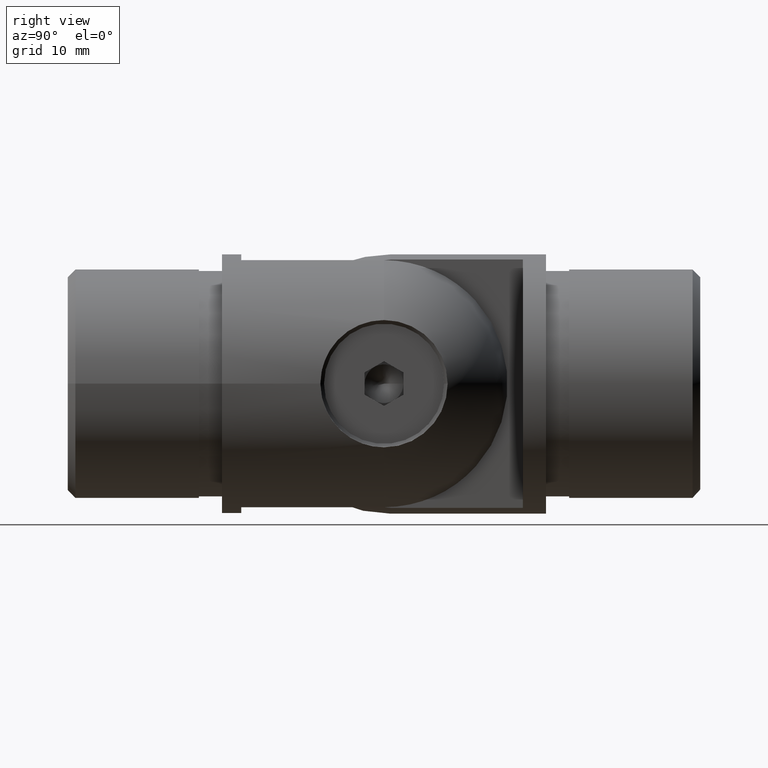
[diagram: clean part render]
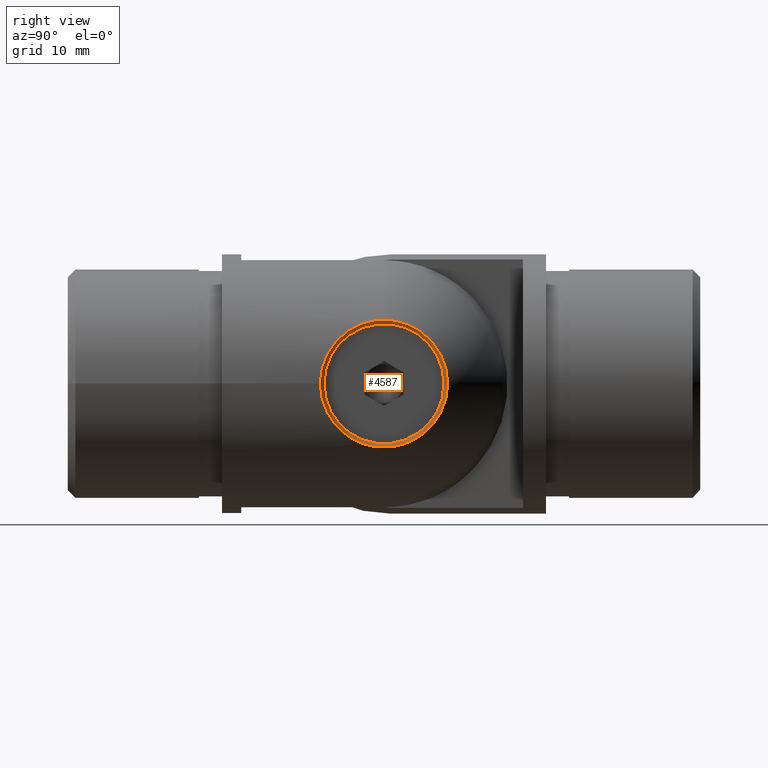
[diagram: same view with one face highlighted and labeled with its STEP entity id]
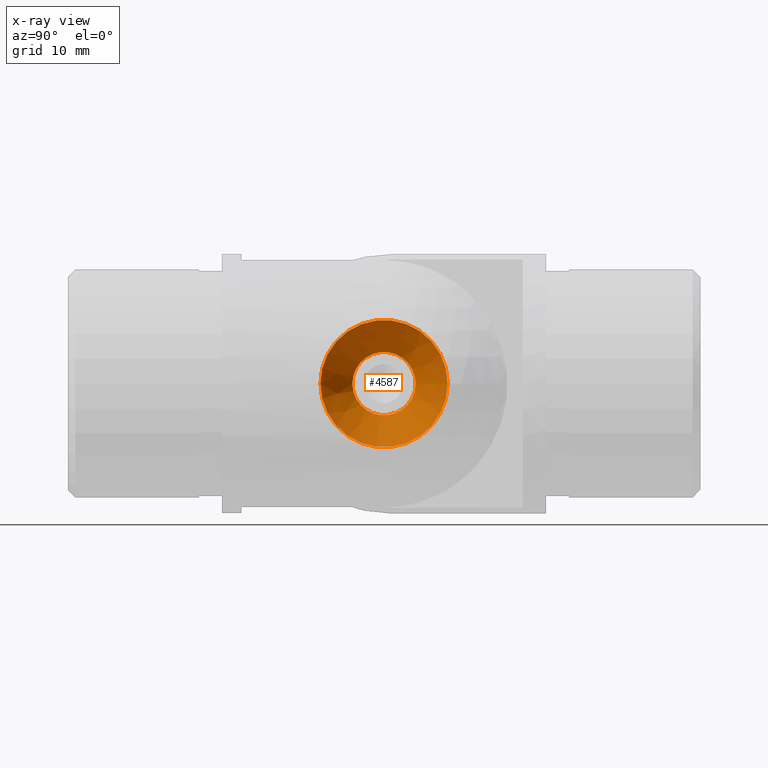
[diagram: x-ray of the same camera — body ghosted, the highlighted face saturated]
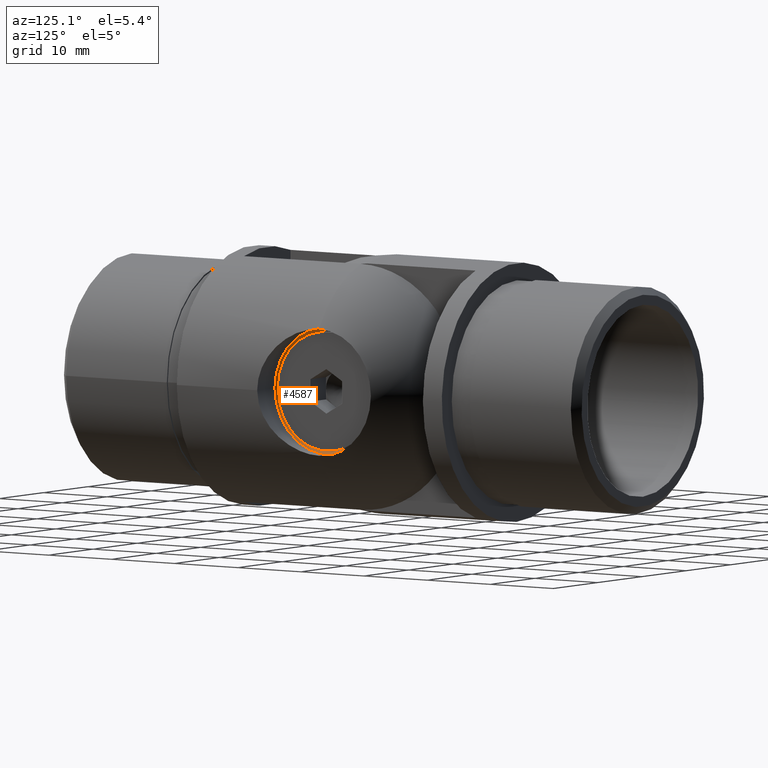
[diagram: same view with one face highlighted and labeled with its STEP entity id]
A machine part, right view. The second image highlights one B-rep face of the part: STEP entity #4587.
The next image is the same camera in x-ray: the body ghosted, the highlighted face saturated — about 0% of this face is hidden behind the body in this view.
A second angle (auxiliary view) of the same face is appended — the face is thin or edge-on in the first view.
In plain terms, the highlighted conical surface has half-angle 45 deg.
Its self-contained STEP definition (entity closure, byte-faithful):
#119 = DIRECTION ( 'NONE',  ( -4.231032868236118900E-016, 1.000000000000000000, 0.0000000000000000000 ) ) ;
#1014 = VERTEX_POINT ( 'NONE', #9947 ) ;
#1164 = CARTESIAN_POINT ( 'NONE',  ( 12.85000000000000000, 20.99999999999999300, 0.0000000000000000000 ) ) ;
#3105 = AXIS2_PLACEMENT_3D ( 'NONE', #7938, #10312, #11458 ) ;
#3881 = EDGE_LOOP ( 'NONE', ( #14266 ) ) ;
#4246 = CARTESIAN_POINT ( 'NONE',  ( 12.84999999999999600, 29.24999999999999600, 0.0000000000000000000 ) ) ;
#4448 = AXIS2_PLACEMENT_3D ( 'NONE', #1164, #5915, #4761 ) ;
#4587 = ADVANCED_FACE ( 'NONE', ( #12206, #14070 ), #12579, .F. ) ;
#4761 = DIRECTION ( 'NONE',  ( -4.205390244792259800E-016, 1.000000000000000000, 0.0000000000000000000 ) ) ;
#5915 = DIRECTION ( 'NONE',  ( 1.000000000000000000, 3.273063162220390800E-016, -0.0000000000000000000 ) ) ;
#6774 = VERTEX_POINT ( 'NONE', #4246 ) ;
#7178 = DIRECTION ( 'NONE',  ( 1.000000000000000000, 3.273063162220390800E-016, -0.0000000000000000000 ) ) ;
#7938 = CARTESIAN_POINT ( 'NONE',  ( 12.85000000000000000, 20.99999999999999300, 0.0000000000000000000 ) ) ;
#9947 = CARTESIAN_POINT ( 'NONE',  ( 8.699999999999949600, 25.09999999999999100, 0.0000000000000000000 ) ) ;
#10312 = DIRECTION ( 'NONE',  ( 1.000000000000000000, 3.273063162220390800E-016, -0.0000000000000000000 ) ) ;
#10734 = CARTESIAN_POINT ( 'NONE',  ( 8.699999999999951300, 20.99999999999999300, 0.0000000000000000000 ) ) ;
#10805 = ORIENTED_EDGE ( 'NONE', *, *, #12259, .F. ) ;
#11458 = DIRECTION ( 'NONE',  ( -4.205390244792259800E-016, 1.000000000000000000, 0.0000000000000000000 ) ) ;
#12206 = FACE_BOUND ( 'NONE', #13668, .T. ) ;
#12259 = EDGE_CURVE ( 'NONE', #1014, #1014, #13104, .T. ) ;
#12579 = CONICAL_SURFACE ( 'NONE', #3105, 8.250000000000000000, 0.7853981633974428400 ) ;
#13104 = CIRCLE ( 'NONE', #14999, 4.099999999999996100 ) ;
#13668 = EDGE_LOOP ( 'NONE', ( #10805 ) ) ;
#14070 = FACE_OUTER_BOUND ( 'NONE', #3881, .T. ) ;
#14266 = ORIENTED_EDGE ( 'NONE', *, *, #14474, .T. ) ;
#14474 = EDGE_CURVE ( 'NONE', #6774, #6774, #15147, .T. ) ;
#14999 = AXIS2_PLACEMENT_3D ( 'NONE', #10734, #7178, #119 ) ;
#15147 = CIRCLE ( 'NONE', #4448, 8.250000000000000000 ) ;